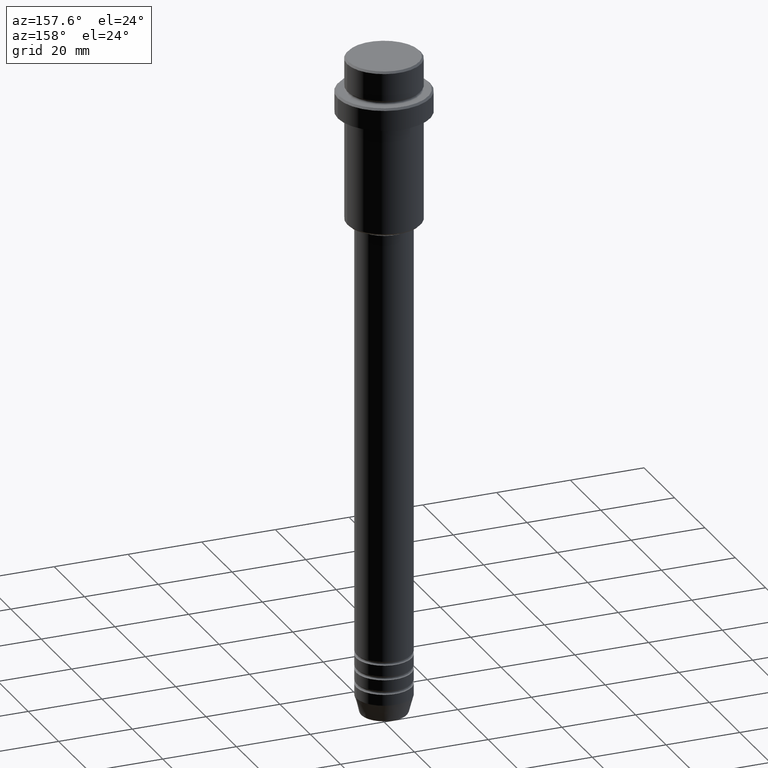
[diagram: clean part render]
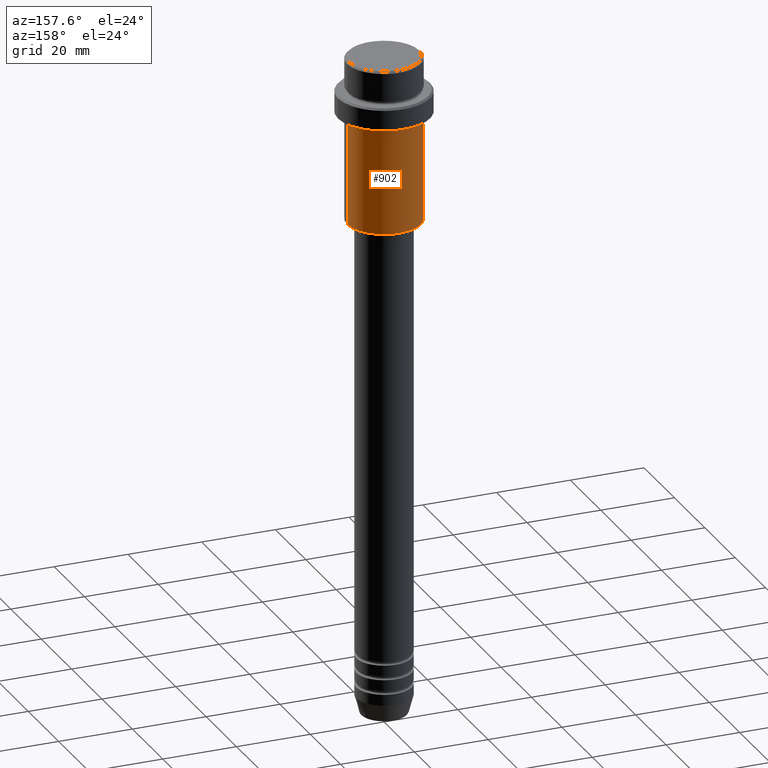
[diagram: same view with one face highlighted and labeled with its STEP entity id]
A machine part, auxiliary view. The second image highlights one B-rep face of the part: STEP entity #902.
In plain terms, the highlighted cylindrical surface (partial cylindrical patch) has radius 10 mm, axis along (-0, -0, 1).
Its self-contained STEP definition (entity closure, byte-faithful):
#20 = CARTESIAN_POINT ( 'NONE',  ( 10.00000000000000000, 0.000000000000000000, 0.000000000000000000 ) ) ;
#94 = ORIENTED_EDGE ( 'NONE', *, *, #965, .T. ) ;
#99 = DIRECTION ( 'NONE',  ( -0.000000000000000000, -0.000000000000000000, 1.000000000000000000 ) ) ;
#132 = DIRECTION ( 'NONE',  ( -1.000000000000000000, 0.000000000000000000, 0.000000000000000000 ) ) ;
#143 = AXIS2_PLACEMENT_3D ( 'NONE', #953, #502, #1258 ) ;
#150 = CARTESIAN_POINT ( 'NONE',  ( -10.00000000000000000, 1.224646799147353256E-15, -44.50000000000000711 ) ) ;
#184 = VERTEX_POINT ( 'NONE', #150 ) ;
#210 = CYLINDRICAL_SURFACE ( 'NONE', #649, 10.00000000000000000 ) ;
#235 = LINE ( 'NONE', #20, #577 ) ;
#251 = EDGE_LOOP ( 'NONE', ( #94, #529, #676, #1018 ) ) ;
#271 = VERTEX_POINT ( 'NONE', #1287 ) ;
#285 = VERTEX_POINT ( 'NONE', #408 ) ;
#408 = CARTESIAN_POINT ( 'NONE',  ( 10.00000000000000000, 0.000000000000000000, -44.50000000000000711 ) ) ;
#454 = CARTESIAN_POINT ( 'NONE',  ( 0.000000000000000000, 0.000000000000000000, -44.50000000000000711 ) ) ;
#485 = VECTOR ( 'NONE', #1238, 1000.000000000000000 ) ;
#502 = DIRECTION ( 'NONE',  ( -0.000000000000000000, -0.000000000000000000, 1.000000000000000000 ) ) ;
#529 = ORIENTED_EDGE ( 'NONE', *, *, #988, .T. ) ;
#533 = DIRECTION ( 'NONE',  ( 1.000000000000000000, 0.000000000000000000, 0.000000000000000000 ) ) ;
#536 = AXIS2_PLACEMENT_3D ( 'NONE', #454, #1345, #132 ) ;
#554 = CIRCLE ( 'NONE', #143, 10.00000000000000000 ) ;
#577 = VECTOR ( 'NONE', #678, 1000.000000000000000 ) ;
#649 = AXIS2_PLACEMENT_3D ( 'NONE', #661, #99, #533 ) ;
#661 = CARTESIAN_POINT ( 'NONE',  ( 0.000000000000000000, 0.000000000000000000, 0.000000000000000000 ) ) ;
#676 = ORIENTED_EDGE ( 'NONE', *, *, #776, .F. ) ;
#678 = DIRECTION ( 'NONE',  ( -0.000000000000000000, -0.000000000000000000, 1.000000000000000000 ) ) ;
#776 = EDGE_CURVE ( 'NONE', #271, #1117, #554, .T. ) ;
#902 = ADVANCED_FACE ( 'NONE', ( #1185 ), #210, .T. ) ;
#953 = CARTESIAN_POINT ( 'NONE',  ( 0.000000000000000000, 0.000000000000000000, -16.00000000000000000 ) ) ;
#965 = EDGE_CURVE ( 'NONE', #285, #184, #1106, .T. ) ;
#988 = EDGE_CURVE ( 'NONE', #184, #1117, #1336, .T. ) ;
#1018 = ORIENTED_EDGE ( 'NONE', *, *, #1070, .F. ) ;
#1064 = CARTESIAN_POINT ( 'NONE',  ( -10.00000000000000000, 1.224646799147353256E-15, -16.00000000000000000 ) ) ;
#1070 = EDGE_CURVE ( 'NONE', #285, #271, #235, .T. ) ;
#1105 = CARTESIAN_POINT ( 'NONE',  ( -10.00000000000000000, 1.224646799147353256E-15, 0.000000000000000000 ) ) ;
#1106 = CIRCLE ( 'NONE', #536, 10.00000000000000000 ) ;
#1117 = VERTEX_POINT ( 'NONE', #1064 ) ;
#1185 = FACE_OUTER_BOUND ( 'NONE', #251, .T. ) ;
#1238 = DIRECTION ( 'NONE',  ( -0.000000000000000000, -0.000000000000000000, 1.000000000000000000 ) ) ;
#1258 = DIRECTION ( 'NONE',  ( 1.000000000000000000, 0.000000000000000000, 0.000000000000000000 ) ) ;
#1287 = CARTESIAN_POINT ( 'NONE',  ( 10.00000000000000000, 0.000000000000000000, -16.00000000000000000 ) ) ;
#1336 = LINE ( 'NONE', #1105, #485 ) ;
#1345 = DIRECTION ( 'NONE',  ( -0.000000000000000000, -0.000000000000000000, 1.000000000000000000 ) ) ;